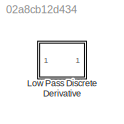
MODEL slx_02a8cb12d434
KIND model
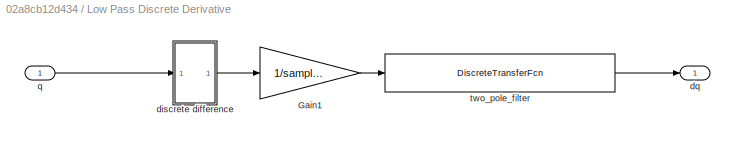
BLOCK [SubSystem] Low Pass Discrete Derivative
  Ports = [1, 1]
  RequestExecContextInheritance = off
BLOCK [Gain] Low Pass Discrete Derivative/Gain1
  Gain = 1/sample_time
  OutDataTypeStr = Inherit: Inherit via internal rule
  ParamDataTypeStr = Inherit: Inherit via internal rule
  SaturateOnIntegerOverflow = off
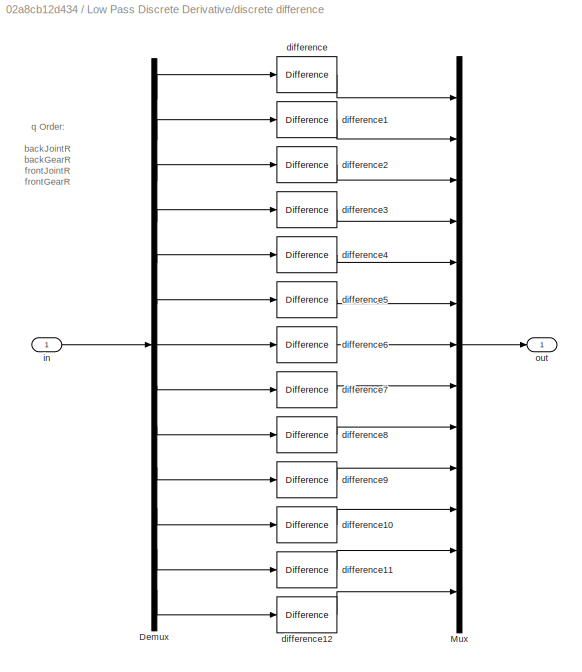
BLOCK [SubSystem] Low Pass Discrete Derivative/discrete difference
  Ports = [1, 1]
  RequestExecContextInheritance = off
BLOCK [Demux] Low Pass Discrete Derivative/discrete difference/Demux
  DisplayOption = bar
  Outputs = 13
  Ports = [1, 13]
BLOCK [Mux] Low Pass Discrete Derivative/discrete difference/Mux
  DisplayOption = bar
  Inputs = 13
  Ports = [13, 1]
BLOCK [Reference] Low Pass Discrete Derivative/discrete difference/difference  REF=simulink/Discrete/Difference
  DoSatur = off
  ICPrevInput = shin_initial_r
  InputProcessing = Columns as channels (frame based)
  LockScale = off
  OutDataType = fixdt(1, 16)
  OutDataTypeStr = Inherit: Inherit via internal rule
  OutMax = []
  OutMin = []
  OutScaling = 2^-10
  OutputDataTypeScalingMode = Inherit via internal rule
  Ports = [1, 1]
  RndMeth = Floor
  SourceBlock = simulink/Discrete/Difference
  SourceType = Difference
BLOCK [Reference] Low Pass Discrete Derivative/discrete difference/difference1  REF=simulink/Discrete/Difference
  DoSatur = off
  ICPrevInput = shin_initial_r
  InputProcessing = Columns as channels (frame based)
  LockScale = off
  OutDataType = fixdt(1, 16)
  OutDataTypeStr = Inherit: Inherit via internal rule
  OutMax = []
  OutMin = []
  OutScaling = 2^-10
  OutputDataTypeScalingMode = Inherit via internal rule
  Ports = [1, 1]
  RndMeth = Floor
  SourceBlock = simulink/Discrete/Difference
  SourceType = Difference
BLOCK [Reference] Low Pass Discrete Derivative/discrete difference/difference10  REF=simulink/Discrete/Difference
  DoSatur = off
  ICPrevInput = initial_torso_roll
  InputProcessing = Columns as channels (frame based)
  LockScale = off
  OutDataType = fixdt(1, 16)
  OutDataTypeStr = Inherit: Inherit via internal rule
  OutMax = []
  OutMin = []
  OutScaling = 2^-10
  OutputDataTypeScalingMode = Inherit via internal rule
  Ports = [1, 1]
  RndMeth = Floor
  SourceBlock = simulink/Discrete/Difference
  SourceType = Difference
BLOCK [Reference] Low Pass Discrete Derivative/discrete difference/difference11  REF=simulink/Discrete/Difference
  DoSatur = off
  ICPrevInput = initial_torso_yaw
  InputProcessing = Columns as channels (frame based)
  LockScale = off
  OutDataType = fixdt(1, 16)
  OutDataTypeStr = Inherit: Inherit via internal rule
  OutMax = []
  OutMin = []
  OutScaling = 2^-10
  OutputDataTypeScalingMode = Inherit via internal rule
  Ports = [1, 1]
  RndMeth = Floor
  SourceBlock = simulink/Discrete/Difference
  SourceType = Difference
BLOCK [Reference] Low Pass Discrete Derivative/discrete difference/difference12  REF=simulink/Discrete/Difference
  DoSatur = off
  ICPrevInput = initial_torso_pitch
  InputProcessing = Columns as channels (frame based)
  LockScale = off
  OutDataType = fixdt(1, 16)
  OutDataTypeStr = Inherit: Inherit via internal rule
  OutMax = []
  OutMin = []
  OutScaling = 2^-10
  OutputDataTypeScalingMode = Inherit via internal rule
  Ports = [1, 1]
  RndMeth = Floor
  SourceBlock = simulink/Discrete/Difference
  SourceType = Difference
BLOCK [Reference] Low Pass Discrete Derivative/discrete difference/difference2  REF=simulink/Discrete/Difference
  DoSatur = off
  ICPrevInput = thigh_initial_r
  InputProcessing = Columns as channels (frame based)
  LockScale = off
  OutDataType = fixdt(1, 16)
  OutDataTypeStr = Inherit: Inherit via internal rule
  OutMax = []
  OutMin = []
  OutScaling = 2^-10
  OutputDataTypeScalingMode = Inherit via internal rule
  Ports = [1, 1]
  RndMeth = Floor
  SourceBlock = simulink/Discrete/Difference
  SourceType = Difference
BLOCK [Reference] Low Pass Discrete Derivative/discrete difference/difference3  REF=simulink/Discrete/Difference
  DoSatur = off
  ICPrevInput = thigh_initial_r
  InputProcessing = Columns as channels (frame based)
  LockScale = off
  OutDataType = fixdt(1, 16)
  OutDataTypeStr = Inherit: Inherit via internal rule
  OutMax = []
  OutMin = []
  OutScaling = 2^-10
  OutputDataTypeScalingMode = Inherit via internal rule
  Ports = [1, 1]
  RndMeth = Floor
  SourceBlock = simulink/Discrete/Difference
  SourceType = Difference
BLOCK [Reference] Low Pass Discrete Derivative/discrete difference/difference4  REF=simulink/Discrete/Difference
  DoSatur = off
  ICPrevInput = shin_initial_l
  InputProcessing = Columns as channels (frame based)
  LockScale = off
  OutDataType = fixdt(1, 16)
  OutDataTypeStr = Inherit: Inherit via internal rule
  OutMax = []
  OutMin = []
  OutScaling = 2^-10
  OutputDataTypeScalingMode = Inherit via internal rule
  Ports = [1, 1]
  RndMeth = Floor
  SourceBlock = simulink/Discrete/Difference
  SourceType = Difference
BLOCK [Reference] Low Pass Discrete Derivative/discrete difference/difference5  REF=simulink/Discrete/Difference
  DoSatur = off
  ICPrevInput = shin_initial_l
  InputProcessing = Columns as channels (frame based)
  LockScale = off
  OutDataType = fixdt(1, 16)
  OutDataTypeStr = Inherit: Inherit via internal rule
  OutMax = []
  OutMin = []
  OutScaling = 2^-10
  OutputDataTypeScalingMode = Inherit via internal rule
  Ports = [1, 1]
  RndMeth = Floor
  SourceBlock = simulink/Discrete/Difference
  SourceType = Difference
BLOCK [Reference] Low Pass Discrete Derivative/discrete difference/difference6  REF=simulink/Discrete/Difference
  DoSatur = off
  ICPrevInput = thigh_initial_l
  InputProcessing = Columns as channels (frame based)
  LockScale = off
  OutDataType = fixdt(1, 16)
  OutDataTypeStr = Inherit: Inherit via internal rule
  OutMax = []
  OutMin = []
  OutScaling = 2^-10
  OutputDataTypeScalingMode = Inherit via internal rule
  Ports = [1, 1]
  RndMeth = Floor
  SourceBlock = simulink/Discrete/Difference
  SourceType = Difference
BLOCK [Reference] Low Pass Discrete Derivative/discrete difference/difference7  REF=simulink/Discrete/Difference
  DoSatur = off
  ICPrevInput = thigh_initial_l
  InputProcessing = Columns as channels (frame based)
  LockScale = off
  OutDataType = fixdt(1, 16)
  OutDataTypeStr = Inherit: Inherit via internal rule
  OutMax = []
  OutMin = []
  OutScaling = 2^-10
  OutputDataTypeScalingMode = Inherit via internal rule
  Ports = [1, 1]
  RndMeth = Floor
  SourceBlock = simulink/Discrete/Difference
  SourceType = Difference
BLOCK [Reference] Low Pass Discrete Derivative/discrete difference/difference8  REF=simulink/Discrete/Difference
  DoSatur = off
  ICPrevInput = initial_hip_roll
  InputProcessing = Columns as channels (frame based)
  LockScale = off
  OutDataType = fixdt(1, 16)
  OutDataTypeStr = Inherit: Inherit via internal rule
  OutMax = []
  OutMin = []
  OutScaling = 2^-10
  OutputDataTypeScalingMode = Inherit via internal rule
  Ports = [1, 1]
  RndMeth = Floor
  SourceBlock = simulink/Discrete/Difference
  SourceType = Difference
BLOCK [Reference] Low Pass Discrete Derivative/discrete difference/difference9  REF=simulink/Discrete/Difference
  DoSatur = off
  ICPrevInput = initial_hip_roll
  InputProcessing = Columns as channels (frame based)
  LockScale = off
  OutDataType = fixdt(1, 16)
  OutDataTypeStr = Inherit: Inherit via internal rule
  OutMax = []
  OutMin = []
  OutScaling = 2^-10
  OutputDataTypeScalingMode = Inherit via internal rule
  Ports = [1, 1]
  RndMeth = Floor
  SourceBlock = simulink/Discrete/Difference
  SourceType = Difference
BLOCK [Inport] Low Pass Discrete Derivative/discrete difference/in
  IconDisplay = Port number
BLOCK [Outport] Low Pass Discrete Derivative/discrete difference/out
  IconDisplay = Port number
BLOCK [Outport] Low Pass Discrete Derivative/dq
  IconDisplay = Port number
BLOCK [Inport] Low Pass Discrete Derivative/q
  IconDisplay = Port number
BLOCK [DiscreteTransferFcn] Low Pass Discrete Derivative/two_pole_filter
  Denominator = [1 B1_lpf_velocity B2_lpf_velocity]
  InputPortMap = u0
  Numerator = [A_lpf_velocity 0 0]
  Ports = [1, 1]
  SampleTime = sample_time
ANNOTATION Low Pass Discrete Derivative/discrete difference: q Order: backJointR backGearR frontJointR frontGearR backJointL backGearL frontJointL frontGearL latR latL boomRoll boomYaw boomPitch
LINE Low Pass Discrete Derivative/Gain1:1 -> Low Pass Discrete Derivative/two_pole_filter:1
LINE Low Pass Discrete Derivative/discrete difference/Demux:1 -> Low Pass Discrete Derivative/discrete difference/difference:1
LINE Low Pass Discrete Derivative/discrete difference/Demux:10 -> Low Pass Discrete Derivative/discrete difference/difference9:1
LINE Low Pass Discrete Derivative/discrete difference/Demux:11 -> Low Pass Discrete Derivative/discrete difference/difference10:1
LINE Low Pass Discrete Derivative/discrete difference/Demux:12 -> Low Pass Discrete Derivative/discrete difference/difference11:1
LINE Low Pass Discrete Derivative/discrete difference/Demux:13 -> Low Pass Discrete Derivative/discrete difference/difference12:1
LINE Low Pass Discrete Derivative/discrete difference/Demux:2 -> Low Pass Discrete Derivative/discrete difference/difference1:1
LINE Low Pass Discrete Derivative/discrete difference/Demux:3 -> Low Pass Discrete Derivative/discrete difference/difference2:1
LINE Low Pass Discrete Derivative/discrete difference/Demux:4 -> Low Pass Discrete Derivative/discrete difference/difference3:1
LINE Low Pass Discrete Derivative/discrete difference/Demux:5 -> Low Pass Discrete Derivative/discrete difference/difference4:1
LINE Low Pass Discrete Derivative/discrete difference/Demux:6 -> Low Pass Discrete Derivative/discrete difference/difference5:1
LINE Low Pass Discrete Derivative/discrete difference/Demux:7 -> Low Pass Discrete Derivative/discrete difference/difference6:1
LINE Low Pass Discrete Derivative/discrete difference/Demux:8 -> Low Pass Discrete Derivative/discrete difference/difference7:1
LINE Low Pass Discrete Derivative/discrete difference/Demux:9 -> Low Pass Discrete Derivative/discrete difference/difference8:1
LINE Low Pass Discrete Derivative/discrete difference/Mux:1 -> Low Pass Discrete Derivative/discrete difference/out:1
LINE Low Pass Discrete Derivative/discrete difference/difference10:1 -> Low Pass Discrete Derivative/discrete difference/Mux:11
LINE Low Pass Discrete Derivative/discrete difference/difference11:1 -> Low Pass Discrete Derivative/discrete difference/Mux:12
LINE Low Pass Discrete Derivative/discrete difference/difference12:1 -> Low Pass Discrete Derivative/discrete difference/Mux:13
LINE Low Pass Discrete Derivative/discrete difference/difference1:1 -> Low Pass Discrete Derivative/discrete difference/Mux:2
LINE Low Pass Discrete Derivative/discrete difference/difference2:1 -> Low Pass Discrete Derivative/discrete difference/Mux:3
LINE Low Pass Discrete Derivative/discrete difference/difference3:1 -> Low Pass Discrete Derivative/discrete difference/Mux:4
LINE Low Pass Discrete Derivative/discrete difference/difference4:1 -> Low Pass Discrete Derivative/discrete difference/Mux:5
LINE Low Pass Discrete Derivative/discrete difference/difference5:1 -> Low Pass Discrete Derivative/discrete difference/Mux:6
LINE Low Pass Discrete Derivative/discrete difference/difference6:1 -> Low Pass Discrete Derivative/discrete difference/Mux:7
LINE Low Pass Discrete Derivative/discrete difference/difference7:1 -> Low Pass Discrete Derivative/discrete difference/Mux:8
LINE Low Pass Discrete Derivative/discrete difference/difference8:1 -> Low Pass Discrete Derivative/discrete difference/Mux:9
LINE Low Pass Discrete Derivative/discrete difference/difference9:1 -> Low Pass Discrete Derivative/discrete difference/Mux:10
LINE Low Pass Discrete Derivative/discrete difference/difference:1 -> Low Pass Discrete Derivative/discrete difference/Mux:1
LINE Low Pass Discrete Derivative/discrete difference/in:1 -> Low Pass Discrete Derivative/discrete difference/Demux:1
LINE Low Pass Discrete Derivative/discrete difference:1 -> Low Pass Discrete Derivative/Gain1:1
LINE Low Pass Discrete Derivative/q:1 -> Low Pass Discrete Derivative/discrete difference:1
LINE Low Pass Discrete Derivative/two_pole_filter:1 -> Low Pass Discrete Derivative/dq:1
